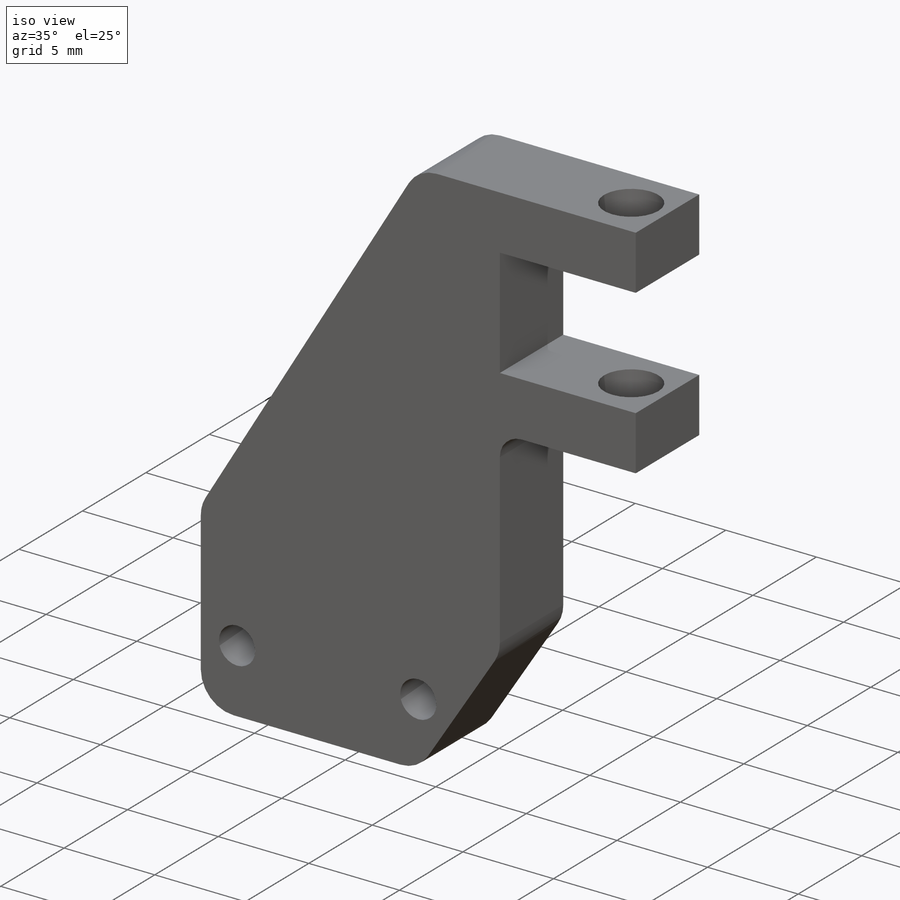
[diagram: iso view]
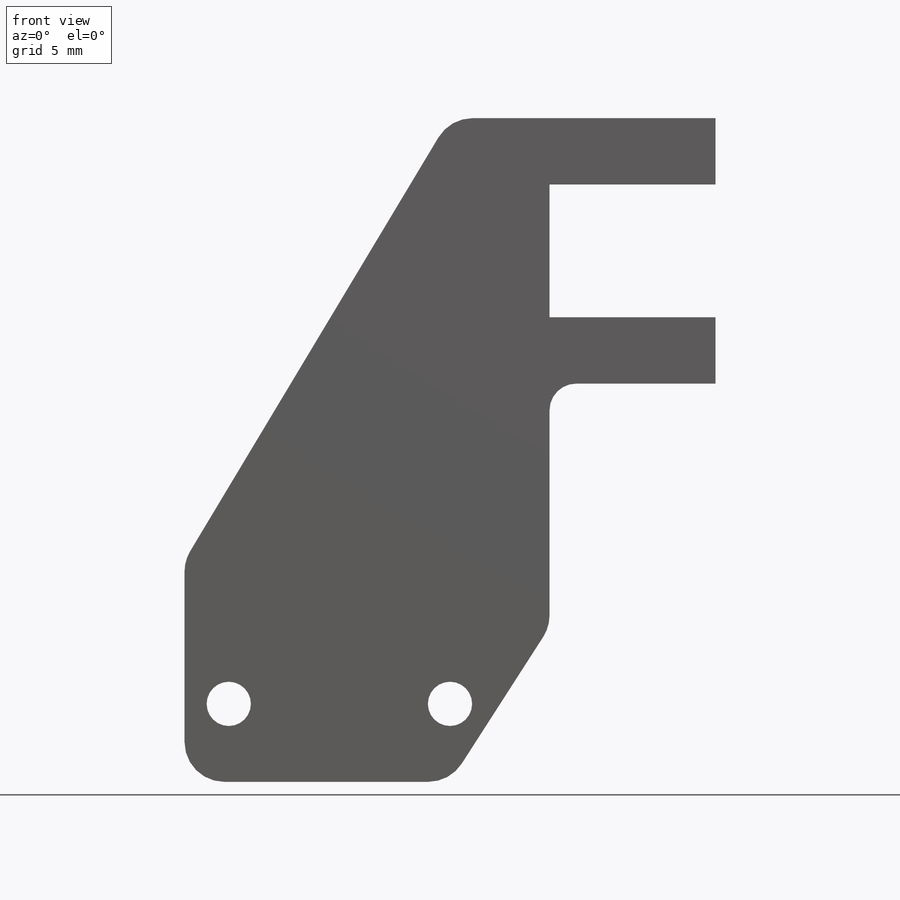
[diagram: front view]
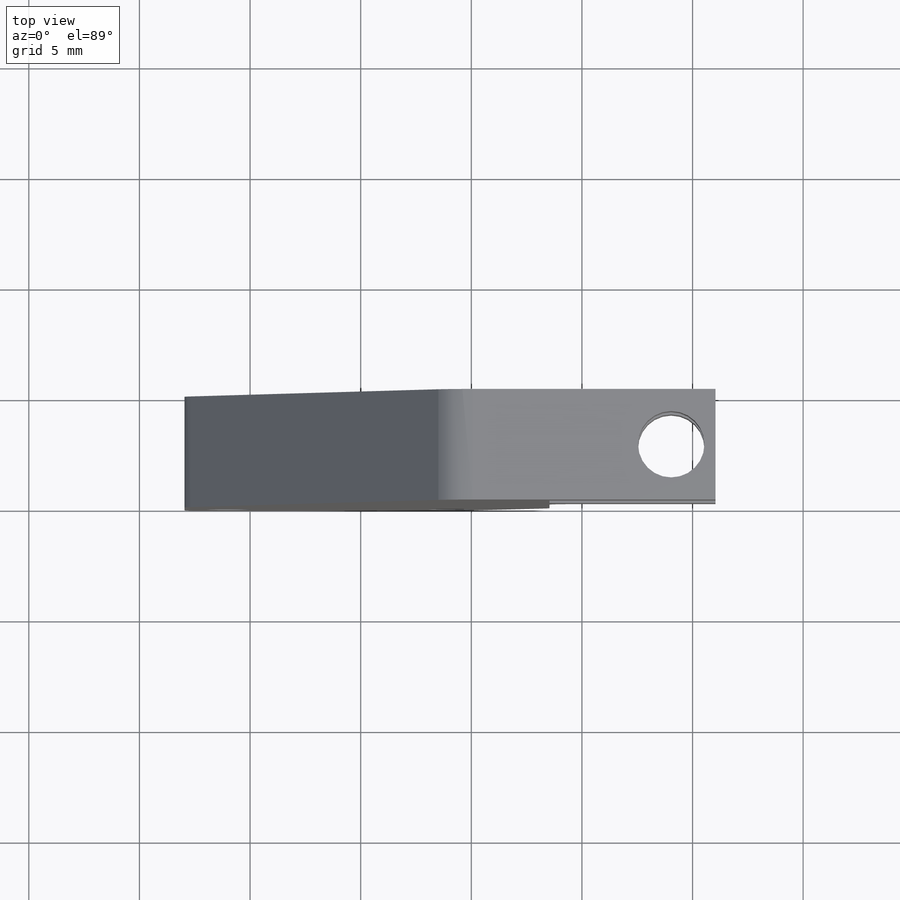
[diagram: top view]
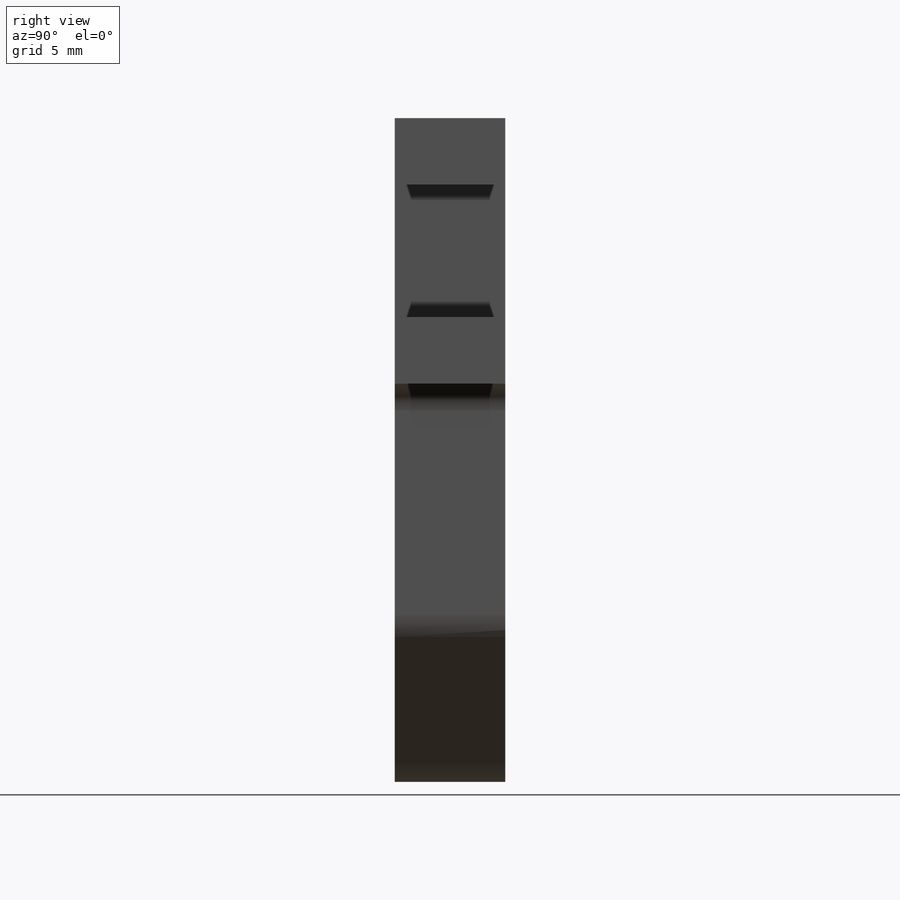
[diagram: right view]
SOLIDWORKS PART (.sldprt)
format: sldprt  version: not decoded by parser v0  size: 175,616 bytes
history: native  units: mm
features: sketch x2, fillet x2, material x1, extrude x1, cut_extrude x1 (+13 scaffold rows collapsed)
feature tree (20):
  scaffold x13  (default folders/planes/origin — collapsed)
  material  "Material <not specified>"
  sketch  "Sketch1"  dims[c1.D10=2.0mm c1.D1=3.0mm c1.D2=3.0mm c1.D3=6.0mm c1.D4=15.0mm c1.D5=12.0mm c1.D6=7.5mm c1.D7=12.0mm c1.D8=10.0mm c1.D9=11.0mm c2.D10=27.0mm c2.D11=4.0mm c2.D8=27.0mm c2.D7=12.0mm c2.D4=30.0mm c3.D7=10.0mm c3.D8=7.0mm c4.D7=11.0mm c4.D8=12.0mm c4.D9=10.0mm c5.D8=11.5mm c5.D9=~10.205351mm c6.D8=24.0mm c6.D9=12.0mm c6.D11=10.0mm c6.D12=2.0mm]
  extrude  "Extrude1"  Depth=5mm
  fillet  "Fillet2"  Radius=1.8mm
  fillet  "Fillet3"  Radius=1.2mm
  sketch  "Sketch3"  dims[D1=3.0mm D2=2.0mm]
  cut_extrude  "Extrude2"  Depth=17mm
decode coverage: 6 of 6 modeling features carry decoded parameters
note: ~ marks probable driven/reference dimensions
note: suppression state not decoded; provenance and decode notes live in map.json
